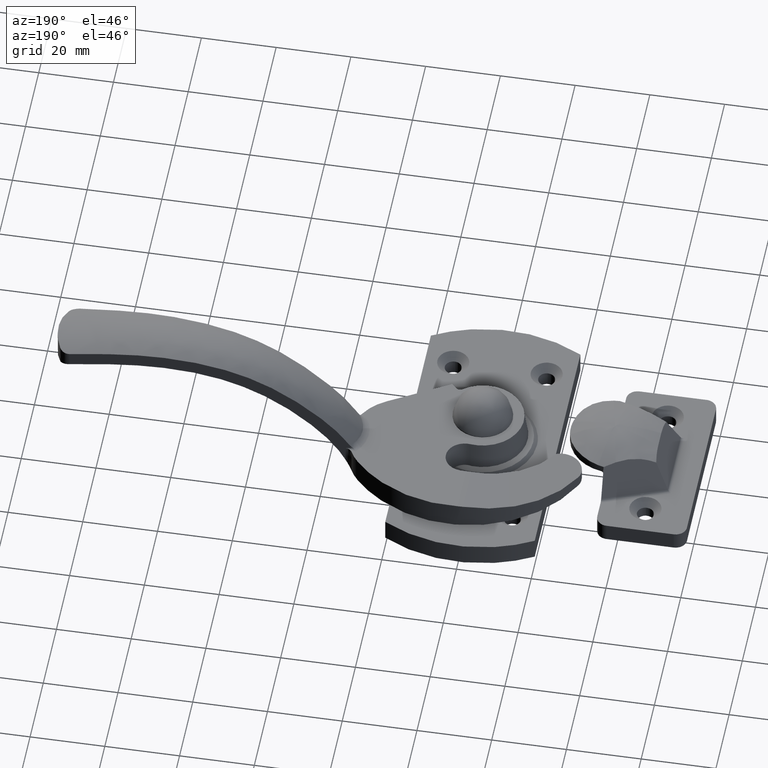
[diagram: clean part render]
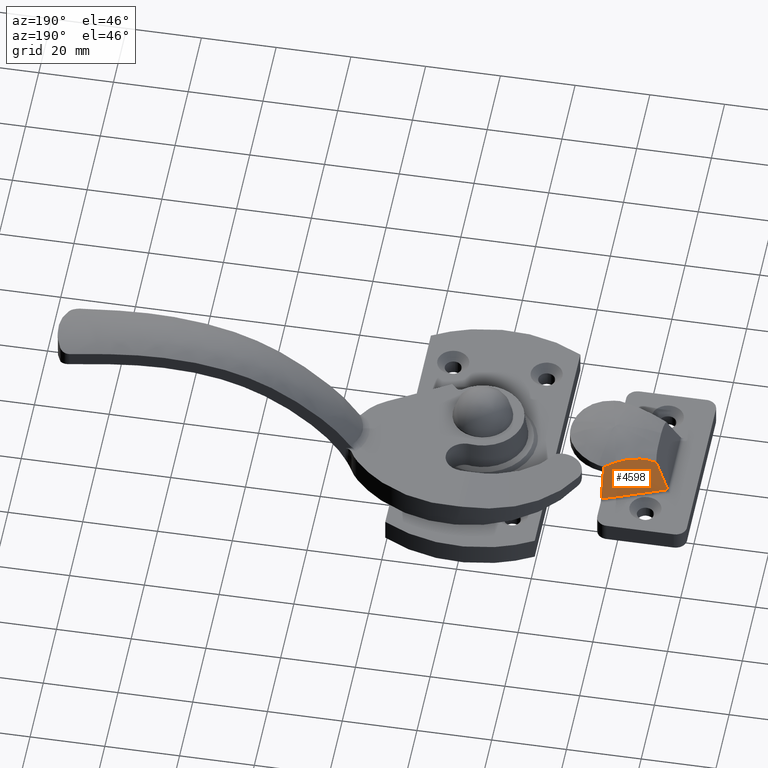
[diagram: same view with one face highlighted and labeled with its STEP entity id]
A machine part, auxiliary view. The second image highlights one B-rep face of the part: STEP entity #4598.
In plain terms, the highlighted face is a freeform B-spline surface patch.
Its self-contained STEP definition (entity closure, byte-faithful):
#3363=CARTESIAN_POINT('',(-34.500000000000000,12.270126944925339,13.781735118107941));
#3364=VERTEX_POINT('',#3363);
#3490=CARTESIAN_POINT('',(-51.219992346756399,9.721985073849320,5.600478660831650));
#3491=VERTEX_POINT('',#3490);
#3505=CARTESIAN_POINT('',(-45.244363054349812,11.996129295323939,5.600478660831709));
#3506=VERTEX_POINT('',#3505);
#3507=CARTESIAN_POINT('',(-51.219992346756399,9.721985073849320,5.600478660831650));
#3508=CARTESIAN_POINT('',(-45.244363054349812,11.996129295323939,5.600478660831709));
#3509=QUASI_UNIFORM_CURVE('',1,(#3507,#3508),.UNSPECIFIED.,.F.,.U.);
#3510=EDGE_CURVE('',#3491,#3506,#3509,.T.);
#3559=CARTESIAN_POINT('',(-44.111123443382553,12.427406100948801,5.600478660831709));
#3560=VERTEX_POINT('',#3559);
#3576=CARTESIAN_POINT('',(-45.244363054349812,11.996129295323939,5.600478660831709));
#3577=CARTESIAN_POINT('',(-45.055489815304853,12.068008751720450,5.600478660831709));
#3578=CARTESIAN_POINT('',(-44.678041927981887,12.212552489877920,5.598551907255144));
#3579=CARTESIAN_POINT('',(-44.299997267248642,12.355526421987010,5.600478660831699));
#3580=CARTESIAN_POINT('',(-44.111123443382553,12.427406100948801,5.600478660831700));
#3581=B_SPLINE_CURVE_WITH_KNOTS('',3,(#3576,#3577,#3578,#3579,#3580),.UNSPECIFIED.,.F.,.U.,(4,1,4),(0.0,0.500000000000000,1.0),.UNSPECIFIED.);
#3582=EDGE_CURVE('',#3506,#3560,#3581,.T.);
#3646=CARTESIAN_POINT('',(-34.500000000000000,16.085109711917951,5.600478660831800));
#3647=VERTEX_POINT('',#3646);
#3669=CARTESIAN_POINT('',(-44.111123443382553,12.427406100948801,5.600478660831709));
#3670=CARTESIAN_POINT('',(-34.500000000000000,16.085109711917951,5.600478660831800));
#3671=QUASI_UNIFORM_CURVE('',1,(#3669,#3670),.UNSPECIFIED.,.F.,.U.);
#3672=EDGE_CURVE('',#3560,#3647,#3671,.T.);
#4270=CARTESIAN_POINT('',(-37.524633074547552,10.751455372738359,14.570028962498361));
#4271=VERTEX_POINT('',#4270);
#4285=CARTESIAN_POINT('',(-47.731705765661701,7.561234993309250,13.081133205326941));
#4286=VERTEX_POINT('',#4285);
#4287=CARTESIAN_POINT('',(-37.524633074547552,10.751455372738359,14.570028962498380));
#4288=CARTESIAN_POINT('',(-37.933550726689020,10.551393958761791,14.665330185538460));
#4289=CARTESIAN_POINT('',(-38.349005348917281,10.358696784589590,14.739503698929870));
#4290=CARTESIAN_POINT('',(-38.981758212735947,10.080433178709470,14.819830396201780));
#4291=CARTESIAN_POINT('',(-39.194273744209788,9.989478773101451,14.841441461843329));
#4292=CARTESIAN_POINT('',(-39.622493397130661,9.811162075798890,14.874357961886140));
#4293=CARTESIAN_POINT('',(-39.836961772780462,9.724315858404570,14.885565206328060));
#4294=CARTESIAN_POINT('',(-40.480687697183967,9.470776376876373,14.903915356745340));
#4295=CARTESIAN_POINT('',(-40.910586401544407,9.310932864233184,14.895845654857020));
#4296=CARTESIAN_POINT('',(-41.771808406547407,9.008732809829047,14.841042660947330));
#4297=CARTESIAN_POINT('',(-42.203131942553313,8.866379157161816,14.794302981156680));
#4298=CARTESIAN_POINT('',(-43.067170144266413,8.598748019218800,14.663068315552909));
#4299=CARTESIAN_POINT('',(-43.499884894876622,8.473471576130848,14.578571025468580));
#4300=CARTESIAN_POINT('',(-44.149999736944288,8.298356289978061,14.423525739539290));
#4301=CARTESIAN_POINT('',(-44.366878718470211,8.242120803657837,14.367120684442559));
#4302=CARTESIAN_POINT('',(-44.692460399101037,8.160998466093920,14.275369618705859));
#4303=CARTESIAN_POINT('',(-44.801084288893946,8.134485424717814,14.243575302855961));
#4304=CARTESIAN_POINT('',(-45.017217813469152,8.082824198844754,14.177969108358200));
#4305=CARTESIAN_POINT('',(-45.124875086695447,8.057638493948080,14.144117199622221));
#4306=CARTESIAN_POINT('',(-45.661149328530563,7.934878882284338,13.969704065102309));
#4307=CARTESIAN_POINT('',(-46.083743104771131,7.846790955854481,13.813715825652571));
#4308=CARTESIAN_POINT('',(-46.916759879894371,7.689782970737924,13.470566716502320));
#4309=CARTESIAN_POINT('',(-47.327180785628251,7.620866208570186,13.283400485685579));
#4310=CARTESIAN_POINT('',(-47.731705765661687,7.561234993309244,13.081133205326941));
#4311=B_SPLINE_CURVE_WITH_KNOTS('',3,(#4287,#4288,#4289,#4290,#4291,#4292,#4293,#4294,#4295,#4296,#4297,#4298,#4299,#4300,#4301,#4302,#4303,#4304,#4305,#4306,#4307,#4308,#4309,#4310),.UNSPECIFIED.,.F.,.U.,(4,2,2,2,2,2,2,2,2,2,2,4),(0.0,0.125000000000000,0.187499999999999,0.249999999999999,0.375000000000000,0.500000000000001,0.625000000000002,0.687500000000003,0.718750000000002,0.750000000000001,0.875000000000001,1.0),.UNSPECIFIED.);
#4312=EDGE_CURVE('',#4271,#4286,#4311,.T.);
#4539=CARTESIAN_POINT('',(-34.500000000000121,12.270126944925369,13.781735118107949));
#4540=CARTESIAN_POINT('',(-35.944994953039235,11.524287346377303,14.201882847621430));
#4541=CARTESIAN_POINT('',(-37.524633074547637,10.751455372738400,14.570028962498380));
#4549=(BOUNDED_CURVE()B_SPLINE_CURVE(2,(#4539,#4540,#4541),.UNSPECIFIED.,.F.,.U.)CURVE()GEOMETRIC_REPRESENTATION_ITEM()QUASI_UNIFORM_CURVE()RATIONAL_B_SPLINE_CURVE((1.0,0.999414274356605,1.0))REPRESENTATION_ITEM(''));
#4550=EDGE_CURVE('',#3364,#4271,#4549,.T.);
#4570=CARTESIAN_POINT('',(-51.219992346756399,9.721985073849320,5.600478660831650));
#4571=CARTESIAN_POINT('',(-47.731705765661701,7.561234993309250,13.081133205326941));
#4572=QUASI_UNIFORM_CURVE('',1,(#4570,#4571),.UNSPECIFIED.,.F.,.U.);
#4573=EDGE_CURVE('',#3491,#4286,#4572,.T.);
#4580=CARTESIAN_POINT('',(-52.055157187712922,5.547628664382405,13.870807424924131));
#4581=CARTESIAN_POINT('',(-52.055157187712922,10.837644842978611,2.526331797225478));
#4582=CARTESIAN_POINT('',(-33.664835906485337,11.296400682718801,16.551504002014831));
#4583=CARTESIAN_POINT('',(-33.664835906485337,16.586416861315008,5.207028374316184));
#4584=B_SPLINE_SURFACE_WITH_KNOTS('',1,1,((#4580,#4582),(#4581,#4583)),.UNSPECIFIED.,.F.,.F.,.U.,(2,2),(2,2),(0.0,12.517244043209290),(0.0,19.453494048216761),.UNSPECIFIED.);
#4585=ORIENTED_EDGE('',*,*,#4573,.T.);
#4586=ORIENTED_EDGE('',*,*,#4312,.F.);
#4587=ORIENTED_EDGE('',*,*,#4550,.F.);
#4588=CARTESIAN_POINT('',(-34.500000000000000,12.270126944925339,13.781735118107941));
#4589=CARTESIAN_POINT('',(-34.500000000000000,16.085109711917951,5.600478660831800));
#4590=QUASI_UNIFORM_CURVE('',1,(#4588,#4589),.UNSPECIFIED.,.F.,.U.);
#4591=EDGE_CURVE('',#3364,#3647,#4590,.T.);
#4592=ORIENTED_EDGE('',*,*,#4591,.T.);
#4593=ORIENTED_EDGE('',*,*,#3672,.F.);
#4594=ORIENTED_EDGE('',*,*,#3582,.F.);
#4595=ORIENTED_EDGE('',*,*,#3510,.F.);
#4596=EDGE_LOOP('',(#4585,#4586,#4587,#4592,#4593,#4594,#4595));
#4597=FACE_OUTER_BOUND('',#4596,.T.);
#4598=ADVANCED_FACE('',(#4597),#4584,.F.);